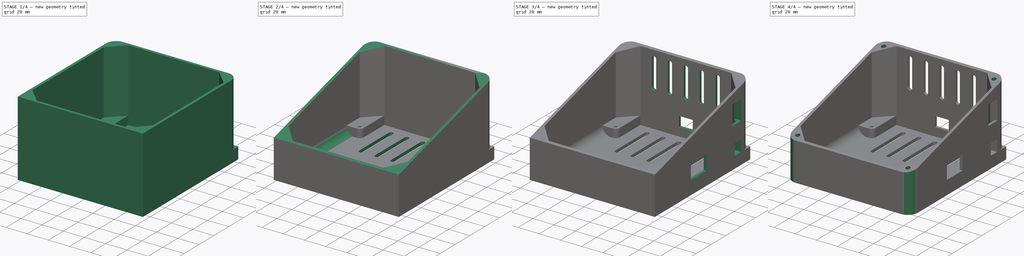
[diagram: build sequence overview — one tinted view per stage of 4, left to right]
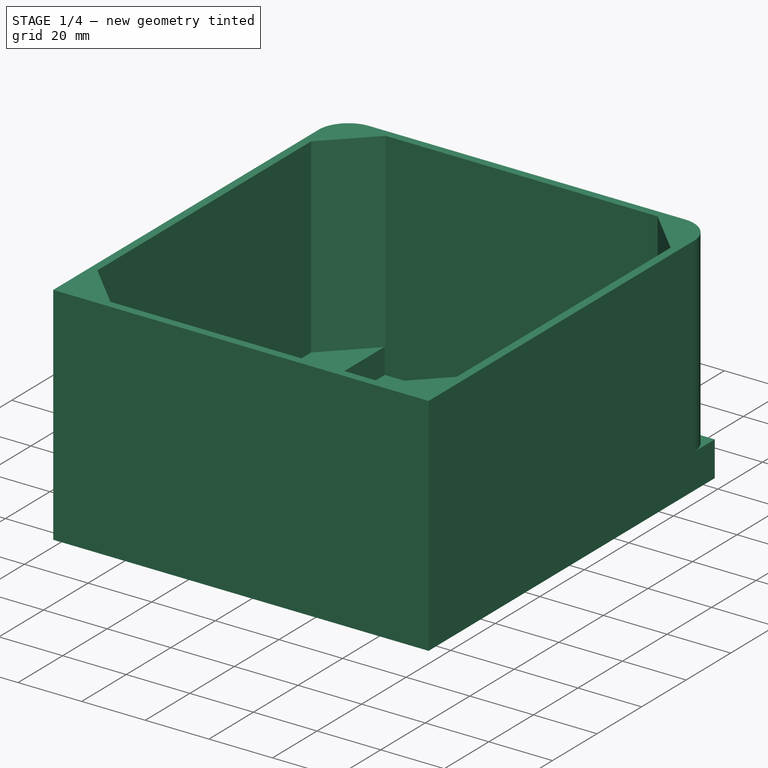
[diagram: stage 1 of 4 — iso view after this stage's code; geometry added in this stage tinted green]
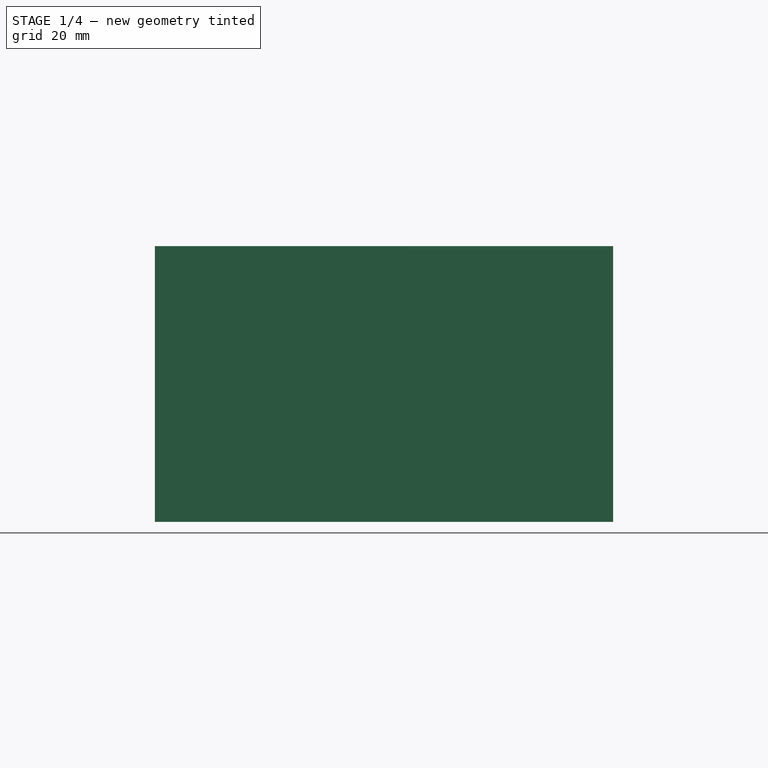
[diagram: stage 1 of 4 — front view after this stage's code; geometry added in this stage tinted green]
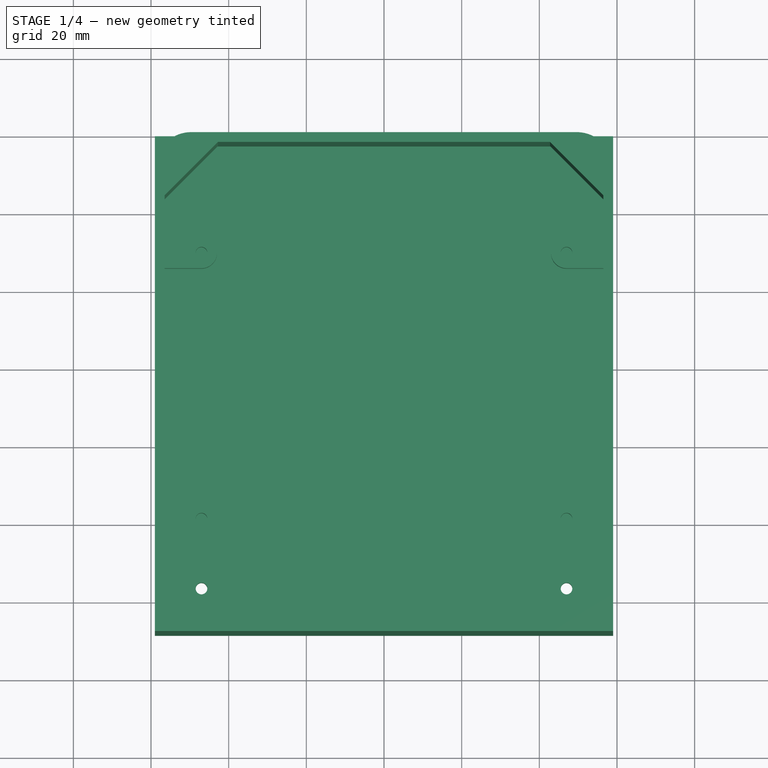
[diagram: stage 1 of 4 — top view after this stage's code; geometry added in this stage tinted green]
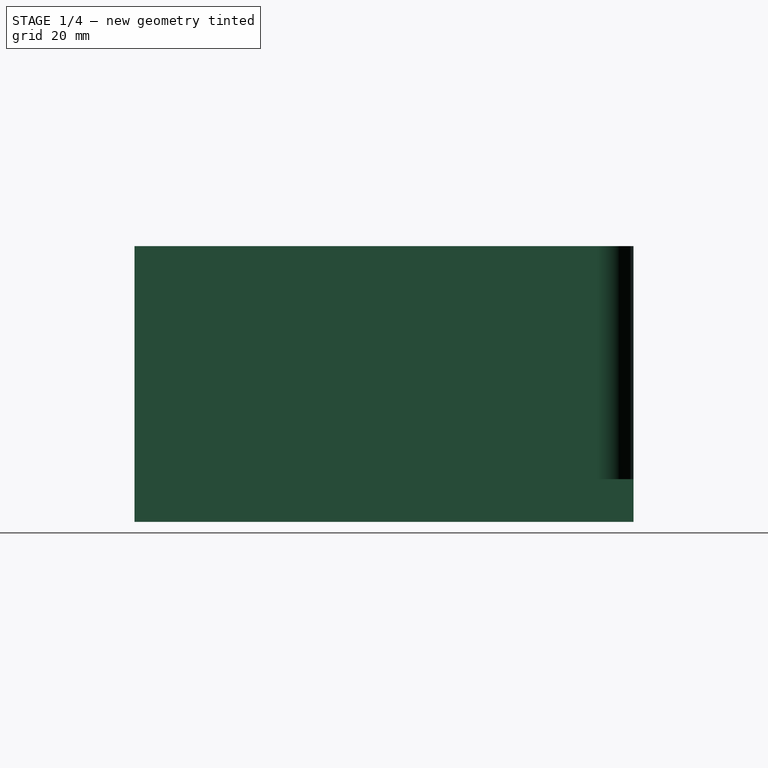
[diagram: stage 1 of 4 — right view after this stage's code; geometry added in this stage tinted green]
FCSTD DOCUMENT  (FreeCAD 0.20RUnknown)
Label: chassis
License: All rights reserved
LicenseURL: http://en.wikipedia.org/wiki/All_rights_reserved
objects: Sketcher::SketchObject×9, PartDesign::Pocket×6, PartDesign::Plane×5, PartDesign::Pad×3, PartDesign::Fillet×2, PartDesign::Body×1
note: 37 computed .brp shape members not serialized (recipe doc carries the construction recipe); baked Part::Feature solids carry a one-line shape summary decoded from their .brp

FEATURE [PartDesign::Plane] DatumPlane
  Length = 144.917
  MapMode = 5
  ResizeMode = 0
  Support = -> [XY_Plane]
  Width = 180.417
FEATURE [Sketcher::SketchObject] Sketch
  FullyConstrained = true
  MapMode = 5
  Support = -> [DatumPlane]
  sketch-geometry (26):
    g0: Circle CenterX=-47 CenterY=-30 CenterZ=0 NormalX=0 NormalY=0 NormalZ=1 AngleXU=0 Radius=1.5
    g1: Circle CenterX=47 CenterY=-30 CenterZ=0 NormalX=0 NormalY=0 NormalZ=1 AngleXU=0 Radius=1.5
    g2: Circle CenterX=47 CenterY=-98.5 CenterZ=0 NormalX=0 NormalY=0 NormalZ=1 AngleXU=0 Radius=1.5
    g3: Circle CenterX=-47 CenterY=-98.5 CenterZ=0 NormalX=0 NormalY=0 NormalZ=1 AngleXU=0 Radius=1.5
    g4: LineSegment StartX=59 StartY=0 StartZ=0 EndX=59 EndY=-128.5 EndZ=0
    g5: LineSegment StartX=59 StartY=-128.5 StartZ=0 EndX=-59 EndY=-128.5 EndZ=0
    g6: LineSegment StartX=-59 StartY=-128.5 StartZ=0 EndX=-59 EndY=0 EndZ=0
    g7: ArcOfCircle CenterX=-47 CenterY=-30 CenterZ=0 NormalX=0 NormalY=0 NormalZ=1 AngleXU=0 Radius=4 StartAngle=4.71239 EndAngle=6.28319
    g8: LineSegment StartX=-43 StartY=-30 StartZ=0 EndX=-43 EndY=-2.5 EndZ=0
    g9: ArcOfCircle CenterX=47 CenterY=-30 CenterZ=0 NormalX=0 NormalY=0 NormalZ=1 AngleXU=0 Radius=4 StartAngle=3.14159 EndAngle=4.71239
    g10: ArcOfCircle CenterX=47 CenterY=-98.5 CenterZ=0 NormalX=0 NormalY=0 NormalZ=1 AngleXU=0 Radius=4 StartAngle=1.5708 EndAngle=3.14159
    g11: ArcOfCircle CenterX=-47 CenterY=-98.5 CenterZ=0 NormalX=0 NormalY=0 NormalZ=1 AngleXU=0 Radius=4 StartAngle=8e-16 EndAngle=1.5708
    g12: LineSegment StartX=-47 StartY=-34 StartZ=0 EndX=-56.5 EndY=-34 EndZ=0
    g13: LineSegment StartX=-56.5 StartY=-34 StartZ=0 EndX=-56.5 EndY=-94.5 EndZ=0
    g14: LineSegment StartX=-56.5 StartY=-94.5 StartZ=0 EndX=-47 EndY=-94.5 EndZ=0
    g15: LineSegment StartX=-43 StartY=-98.5 StartZ=0 EndX=-43 EndY=-126 EndZ=0
    g16: LineSegment StartX=43 StartY=-98.5 StartZ=0 EndX=43 EndY=-126 EndZ=0
    g17: LineSegment StartX=43 StartY=-126 StartZ=0 EndX=-43 EndY=-126 EndZ=0
    g18: LineSegment StartX=47 StartY=-94.5 StartZ=0 EndX=56.5 EndY=-94.5 EndZ=0
    g19: LineSegment StartX=56.5 StartY=-94.5 StartZ=0 EndX=56.5 EndY=-34 EndZ=0
    g20: LineSegment StartX=56.5 StartY=-34 StartZ=0 EndX=47 EndY=-34 EndZ=0
    g21: LineSegment StartX=43 StartY=-30 StartZ=0 EndX=43 EndY=-2.5 EndZ=0
    g22: LineSegment StartX=-59 StartY=0 StartZ=0 EndX=59 EndY=0 EndZ=0
    g23: LineSegment StartX=43 StartY=-2.5 StartZ=0 EndX=-43 EndY=-2.5 EndZ=0
    g24: Circle CenterX=-47 CenterY=-116.5 CenterZ=0 NormalX=0 NormalY=0 NormalZ=1 AngleXU=0 Radius=1.5
    g25: Circle CenterX=47 CenterY=-116.5 CenterZ=0 NormalX=0 NormalY=0 NormalZ=1 AngleXU=0 Radius=1.5
  constraints (76):
    c: Radius(g0) = 1.5
    c: Equal(g0,g1)
    c: Equal(g1,g2)
    c: Equal(g2,g3)
    c: DistanceX(g0,g-1) = 47
    c: DistanceX(g0,g1) = 94
    c: Vertical(g0,g3)
    c: Vertical(g1,g2)
    c: DistanceY(g3,g0) = 68.5
    c: DistanceY(g2,g1) = 68.5
    c: DistanceY(g3,g-1) = 98.5
    c: Horizontal(g3,g2)
    c: Coincident(g4,g5)
    c: Coincident(g5,g6)
    c: Horizontal(g5)
    c: Vertical(g4)
    c: Vertical(g6)
    c: DistanceY(g5,g3) = 30
    c: Symmetric(g6,g4,g-1)
    c: DistanceX(g6,g-1) = 59
    c: Coincident(g7,g0)
    c: Coincident(g8,g7)
    c: Vertical(g8)
    c: Coincident(g9,g1)
    c: Coincident(g10,g2)
    c: Coincident(g11,g3)
    c: Coincident(g12,g7)
    c: Horizontal(g12)
    c: Coincident(g13,g12)
    c: Vertical(g13)
    c: Coincident(g14,g13)
    c: Coincident(g14,g11)
    c: Horizontal(g14)
    c: Coincident(g15,g11)
    c: Vertical(g15)
    c: Coincident(g16,g10)
    c: Vertical(g16)
    c: Coincident(g17,g16)
    c: Coincident(g17,g15)
    c: Horizontal(g17)
    c: Coincident(g18,g10)
    c: Horizontal(g18)
    c: Coincident(g19,g18)
    c: Vertical(g19)
    c: Coincident(g20,g19)
    c: Coincident(g20,g9)
    c: Horizontal(g20)
    c: Coincident(g21,g9)
    c: Vertical(g21)
    c: DistanceY(g8,g-1) = 2.5
    c: DistanceY(g5,g15) = 2.5
    c: DistanceX(g6,g12) = 2.5
    c: DistanceX(g19,g4) = 2.5
    c: Vertical(g1,g9)
    c: Vertical(g0,g7)
    c: Vertical(g3,g11)
    c: Vertical(g2,g10)
    c: Horizontal(g2,g10)
    c: Horizontal(g3,g11)
    c: Horizontal(g0,g7)
    c: Horizontal(g1,g9)
    c: Radius(g7) = 4
    c: Equal(g7,g9)
    c: Equal(g9,g10)
    c: Equal(g10,g11)
    c: Coincident(g22,g6)
    c: Coincident(g22,g4)
    c: Horizontal(g22)
    c: Coincident(g23,g21)
    c: Coincident(g23,g8)
    c: Horizontal(g23)
    c: Radius(g24) = 1.5
    c: Radius(g25) = 1.5
    c: DistanceX(g5,g24) = 12
    c: Symmetric(g24,g25,g-2)
    c: DistanceY(g5,g24) = 12
FEATURE [PartDesign::Pad] Pad
  Direction = (0,0,1)
  Length = 8
  Length2 = 10
  Profile = -> Sketch
  ReferenceAxis = -> Sketch [N_Axis]
  Type = 0
FEATURE [Sketcher::SketchObject] Sketch001
  FullyConstrained = true
  MapMode = 5
  Support = -> [DatumPlane]
  sketch-geometry (6):
    g0: LineSegment StartX=-59 StartY=-128.5 StartZ=0 EndX=59 EndY=-128.5 EndZ=0
    g1: LineSegment StartX=59 StartY=-128.5 StartZ=0 EndX=59 EndY=0 EndZ=0
    g2: LineSegment StartX=59 StartY=0 StartZ=0 EndX=-59 EndY=0 EndZ=0
    g3: LineSegment StartX=-59 StartY=0 StartZ=0 EndX=-59 EndY=-128.5 EndZ=0
    g4: Circle CenterX=-47 CenterY=-116.5 CenterZ=0 NormalX=0 NormalY=0 NormalZ=1 AngleXU=0 Radius=2
    g5: Circle CenterX=47 CenterY=-116.5 CenterZ=0 NormalX=0 NormalY=0 NormalZ=1 AngleXU=0 Radius=2
  constraints (16):
    c: Coincident(g0,g1)
    c: Coincident(g1,g2)
    c: Coincident(g2,g3)
    c: Coincident(g3,g0)
    c: Horizontal(g0)
    c: Horizontal(g2)
    c: Vertical(g1)
    c: Vertical(g3)
    c: Symmetric(g2,g1,g-1)
    c: DistanceX(g2,g-1) = 59
    c: DistanceY(g3,g3) = 128.5
    c: Radius(g4) = 2
    c: Equal(g4,g5)
    c: DistanceX(g0,g4) = 12
    c: DistanceY(g0,g4) = 12
    c: Symmetric(g4,g5,g-2)
FEATURE [PartDesign::Pad] Pad001
  BaseFeature = -> Pad
  Direction = (0,0,1)
  Length = 3
  Length2 = 10
  Profile = -> Sketch001
  ReferenceAxis = -> Sketch001 [N_Axis]
  Refine = true
  Reversed = true
  Type = 0
FEATURE [PartDesign::Plane] DatumPlane001
  AttachmentOffset = pos=(0,0,8) rot=(0,0,1;0rad)
  Length = 144.917
  MapMode = 5
  Placement = pos=(0,0,8) rot=(0,0,1;0rad)
  ResizeMode = 0
  Support = -> [XY_Plane]
  Width = 180.417
FEATURE [Sketcher::SketchObject] Sketch002
  FullyConstrained = true
  MapMode = 5
  Placement = pos=(0,0,8) rot=(0,0,1;0rad)
  Support = -> [DatumPlane001]
  sketch-geometry (14):
    g0: LineSegment StartX=-42.75 StartY=-2.5 StartZ=0 EndX=42.75 EndY=-2.5 EndZ=0
    g1: LineSegment StartX=42.75 StartY=-2.5 StartZ=0 EndX=56.5 EndY=-16.25 EndZ=0
    g2: LineSegment StartX=56.5 StartY=-16.25 StartZ=0 EndX=56.5 EndY=-112.25 EndZ=0
    g3: LineSegment StartX=56.5 StartY=-112.25 StartZ=0 EndX=42.75 EndY=-126 EndZ=0
    g4: LineSegment StartX=42.75 StartY=-126 StartZ=0 EndX=-42.75 EndY=-126 EndZ=0
    g5: LineSegment StartX=-42.75 StartY=-126 StartZ=0 EndX=-56.5 EndY=-112.25 EndZ=0
    g6: LineSegment StartX=-56.5 StartY=-112.25 StartZ=0 EndX=-56.5 EndY=-16.25 EndZ=0
    g7: LineSegment StartX=-56.5 StartY=-16.25 StartZ=0 EndX=-42.75 EndY=-2.5 EndZ=0
    g8: ArcOfCircle CenterX=49.625 CenterY=-9.375 CenterZ=0 NormalX=0 NormalY=0 NormalZ=1 AngleXU=0 Radius=9.375 StartAngle=6.28318 EndAngle=7.85398
    g9: ArcOfCircle CenterX=-49.625 CenterY=-9.375 CenterZ=0 NormalX=0 NormalY=0 NormalZ=1 AngleXU=0 Radius=9.375 StartAngle=1.5708 EndAngle=3.1416
    g10: LineSegment StartX=-49.625 StartY=1.8e-15 StartZ=0 EndX=49.625 EndY=0 EndZ=0
    g11: LineSegment StartX=59 StartY=-9.37502 StartZ=0 EndX=59 EndY=-128.5 EndZ=0
    g12: LineSegment StartX=-59 StartY=-128.5 StartZ=0 EndX=-59 EndY=-9.37502 EndZ=0
    g13: LineSegment StartX=-59 StartY=-128.5 StartZ=0 EndX=59 EndY=-128.5 EndZ=0
  constraints (36):
    c: Coincident(g1,g0)
    c: Coincident(g2,g1)
    c: Vertical(g2)
    c: Coincident(g3,g2)
    c: Coincident(g4,g3)
    c: Coincident(g5,g4)
    c: Coincident(g6,g5)
    c: Vertical(g6)
    c: Coincident(g7,g6)
    c: Coincident(g7,g0)
    c: Symmetric(g0,g0,g-2)
    c: Symmetric(g4,g3,g-2)
    c: Symmetric(g1,g6,g-2)
    c: Vertical(g0,g4)
    c: DistanceX(g0,g-1) = 42.75
    c: Angle(g7,g1) = 1.5708
    c: Angle(g2,g3) = 2.35619
    c: Angle(g5,g6) = 2.35619
    c: Symmetric(g1,g0,g8)
    c: Symmetric(g0,g6,g9)
    c: Coincident(g10,g9)
    c: Coincident(g10,g8)
    c: Coincident(g11,g8)
    c: Coincident(g12,g9)
    c: Vertical(g9,g9)
    c: Symmetric(g9,g8,g-1)
    c: Symmetric(g9,g8,g-2)
    c: DistanceX(g9,g8) = 118
    c: DistanceX(g9,g6) = 2.5
    c: DistanceY(g0,g9) = 2.5
    c: DistanceX(g12,g5) = 2.5
    c: Coincident(g13,g12)
    c: Coincident(g13,g11)
    c: DistanceY(g11,g-1) = 128.5
    c: DistanceY(g11,g3) = 2.5
    c: Symmetric(g12,g11,g-2)
FEATURE [PartDesign::Pad] Pad002
  BaseFeature = -> Pad001
  Direction = (0,0,1)
  Length = 60
  Length2 = 10
  Profile = -> Sketch002
  ReferenceAxis = -> Sketch002 [N_Axis]
  Refine = true
  Type = 0
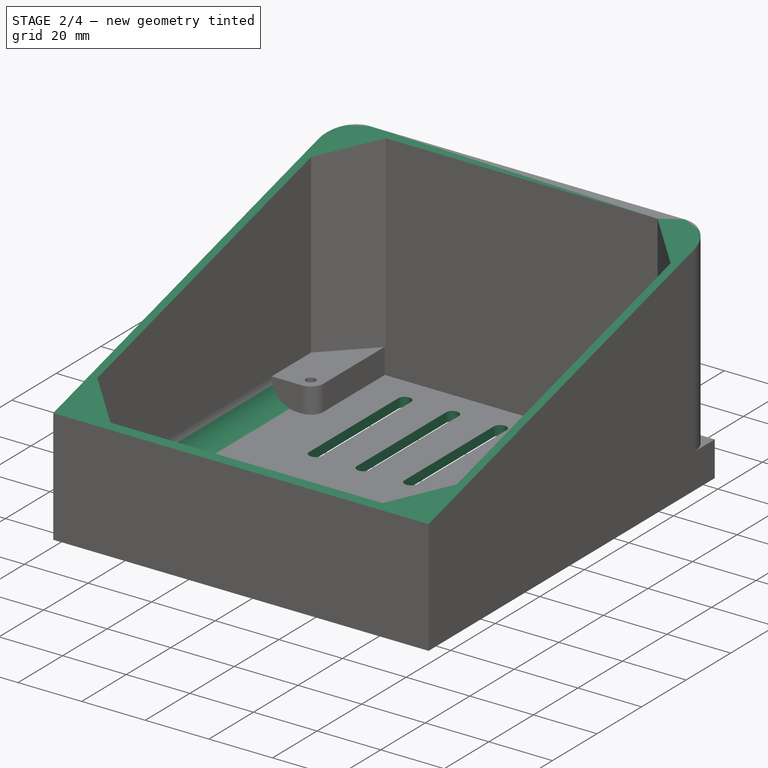
[diagram: stage 2 of 4 — iso view after this stage's code; geometry added in this stage tinted green]
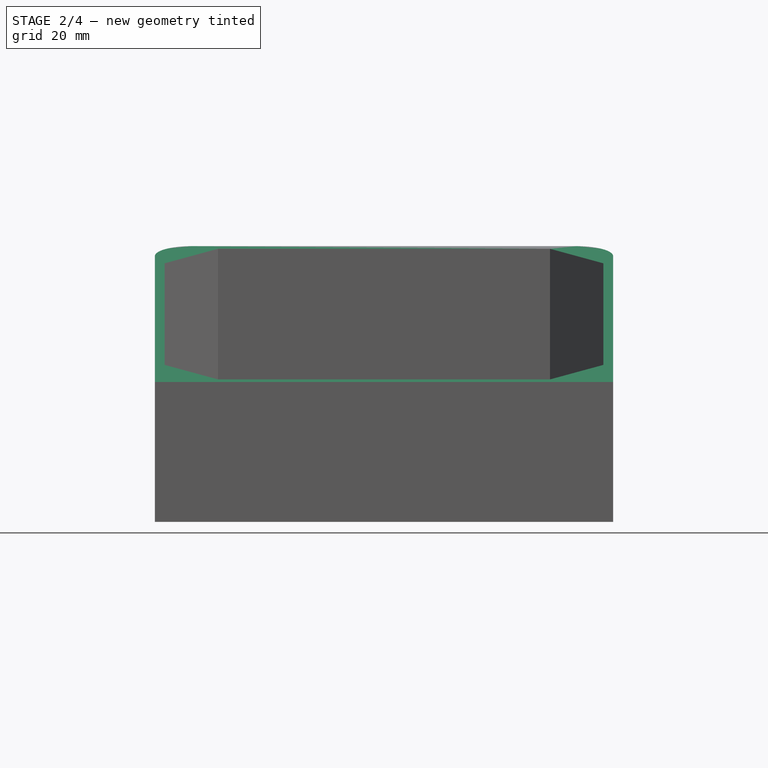
[diagram: stage 2 of 4 — front view after this stage's code; geometry added in this stage tinted green]
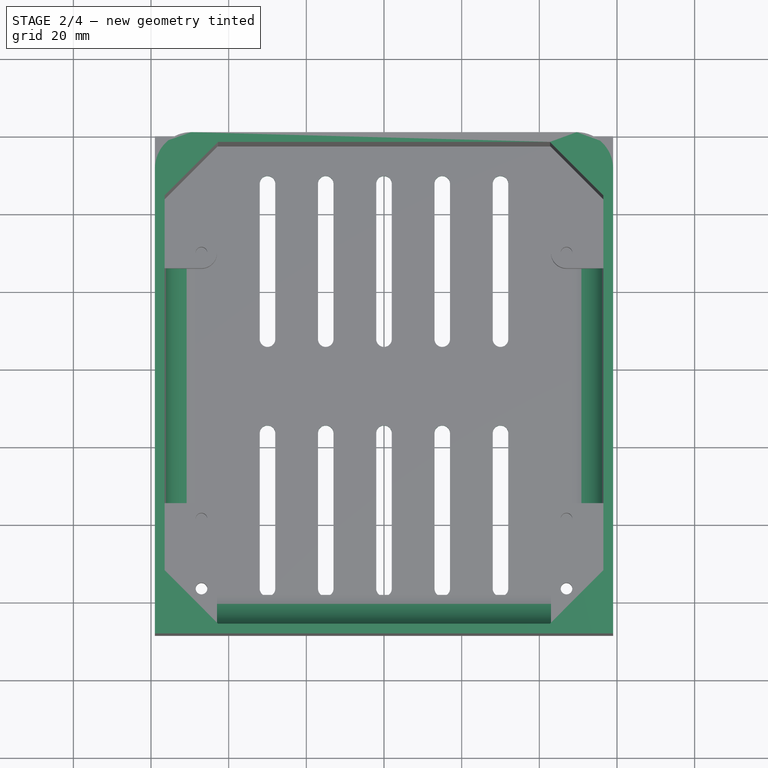
[diagram: stage 2 of 4 — top view after this stage's code; geometry added in this stage tinted green]
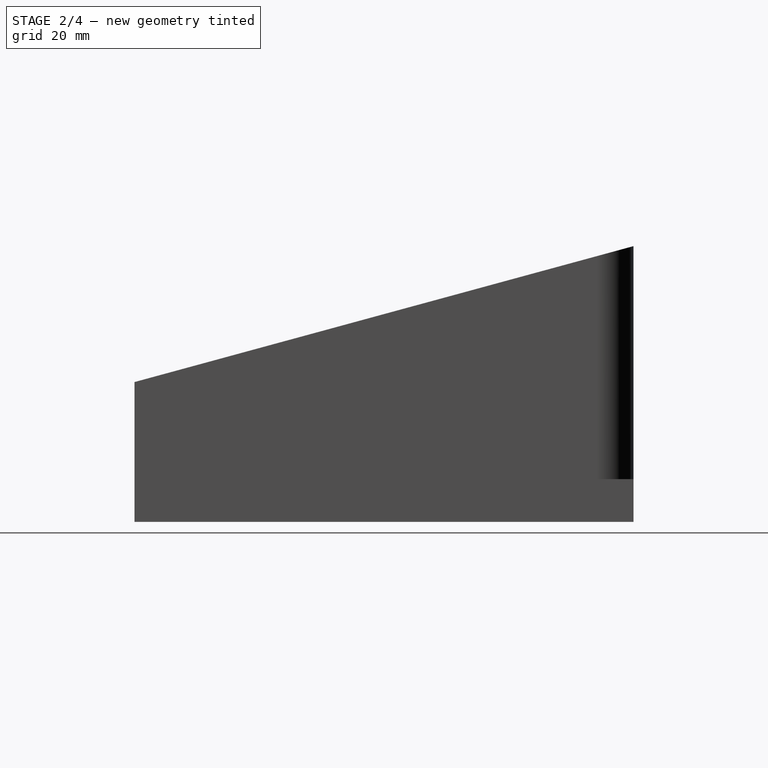
[diagram: stage 2 of 4 — right view after this stage's code; geometry added in this stage tinted green]
FEATURE [PartDesign::Plane] DatumPlane002
  AttachmentOffset = pos=(0,0,59) rot=(0,0,1;0rad)
  Length = 177.396
  MapMode = 5
  Placement = pos=(59,-1.31e-14,1.31e-14) rot=(0.57735,0.57735,0.57735;2.0944rad)
  ResizeMode = 0
  Support = -> [YZ_Plane]
  Width = 116.896
FEATURE [Sketcher::SketchObject] Sketch003
  FullyConstrained = true
  MapMode = 5
  Placement = pos=(59,-1.31e-14,1.31e-14) rot=(0.57735,0.57735,0.57735;2.0944rad)
  Support = -> [DatumPlane002]
  sketch-geometry (3):
    g0: LineSegment StartX=-128.5 StartY=33 StartZ=0 EndX=0 EndY=68 EndZ=0
    g1: LineSegment StartX=-128.5 StartY=33 StartZ=0 EndX=-128.5 EndY=68 EndZ=0
    g2: LineSegment StartX=-128.5 StartY=68 StartZ=0 EndX=0 EndY=68 EndZ=0
  constraints (9):
    c: PointOnObject(g0,g-2)
    c: Coincident(g1,g0)
    c: Vertical(g1)
    c: Coincident(g2,g1)
    c: Coincident(g2,g0)
    c: Horizontal(g2)
    c: DistanceY(g-1,g0) = 33
    c: DistanceY(g-1,g0) = 68
    c: DistanceX(g2,g2) = 128.5
FEATURE [PartDesign::Fillet] Fillet
  Base = -> Pad002 [Edge114,Edge113,Edge115]
  BaseFeature = -> Pad002
  Radius = 8
  Refine = true
  SupportTransform = false
  UseAllEdges = false
FEATURE [PartDesign::Pocket] Pocket
  BaseFeature = -> Fillet
  Direction = (-1,1e-16,-1e-16)
  Length = 118
  Length2 = 5
  Profile = -> Sketch003
  ReferenceAxis = -> Sketch003 [N_Axis]
  Type = 0
FEATURE [Sketcher::SketchObject] Sketch004
  FullyConstrained = true
  MapMode = 5
  Support = -> [DatumPlane]
  sketch-geometry (50):
    g0: ArcOfCircle CenterX=0 CenterY=-12.125 CenterZ=0 NormalX=0 NormalY=0 NormalZ=1 AngleXU=0 Radius=2 StartAngle=3.3915e-12 EndAngle=3.14159
    g1: ArcOfCircle CenterX=0 CenterY=-52.125 CenterZ=0 NormalX=0 NormalY=0 NormalZ=1 AngleXU=0 Radius=2 StartAngle=3.14159 EndAngle=6.28319
    g2: LineSegment StartX=-2 StartY=-12.125 StartZ=0 EndX=-2 EndY=-52.125 EndZ=0
    g3: LineSegment StartX=2 StartY=-52.125 StartZ=0 EndX=2 EndY=-32.125 EndZ=0
    g4: LineSegment StartX=2 StartY=-32.125 StartZ=0 EndX=2 EndY=-12.125 EndZ=0
    g5: ArcOfCircle CenterX=15 CenterY=-12.125 CenterZ=0 NormalX=0 NormalY=0 NormalZ=1 AngleXU=0 Radius=2 StartAngle=3.4079e-12 EndAngle=3.14159
    g6: ArcOfCircle CenterX=15 CenterY=-52.125 CenterZ=0 NormalX=0 NormalY=0 NormalZ=1 AngleXU=0 Radius=2 StartAngle=3.14159 EndAngle=6.28319
    g7: LineSegment StartX=13 StartY=-12.125 StartZ=0 EndX=13 EndY=-52.125 EndZ=0
    g8: LineSegment StartX=17 StartY=-52.125 StartZ=0 EndX=17 EndY=-32.125 EndZ=0
    g9: LineSegment StartX=17 StartY=-32.125 StartZ=0 EndX=17 EndY=-12.125 EndZ=0
    g10: ArcOfCircle CenterX=30 CenterY=-12.125 CenterZ=0 NormalX=0 NormalY=0 NormalZ=1 AngleXU=0 Radius=2 StartAngle=3.4085e-12 EndAngle=3.14159
    g11: ArcOfCircle CenterX=30 CenterY=-52.125 CenterZ=0 NormalX=0 NormalY=0 NormalZ=1 AngleXU=0 Radius=2 StartAngle=3.14159 EndAngle=6.28319
    g12: LineSegment StartX=28 StartY=-12.125 StartZ=0 EndX=28 EndY=-52.125 EndZ=0
    g13: LineSegment StartX=32 StartY=-52.125 StartZ=0 EndX=32 EndY=-32.125 EndZ=0
    g14: LineSegment StartX=32 StartY=-32.125 StartZ=0 EndX=32 EndY=-12.125 EndZ=0
    g15: ArcOfCircle CenterX=-30 CenterY=-12.125 CenterZ=0 NormalX=0 NormalY=0 NormalZ=1 AngleXU=0 Radius=2 StartAngle=3.385e-12 EndAngle=3.14159
    g16: ArcOfCircle CenterX=-30 CenterY=-52.125 CenterZ=0 NormalX=0 NormalY=0 NormalZ=1 AngleXU=0 Radius=2 StartAngle=3.14159 EndAngle=6.28319
    g17: LineSegment StartX=-32 StartY=-12.125 StartZ=0 EndX=-32 EndY=-52.125 EndZ=0
    g18: LineSegment StartX=-28 StartY=-52.125 StartZ=0 EndX=-28 EndY=-32.125 EndZ=0
    g19: LineSegment StartX=-28 StartY=-32.125 StartZ=0 EndX=-28 EndY=-12.125 EndZ=0
    g20: ArcOfCircle CenterX=-15 CenterY=-12.125 CenterZ=0 NormalX=0 NormalY=0 NormalZ=1 AngleXU=0 Radius=2 StartAngle=3.4081e-12 EndAngle=3.14159
    g21: ArcOfCircle CenterX=-15 CenterY=-52.125 CenterZ=0 NormalX=0 NormalY=0 NormalZ=1 AngleXU=0 Radius=2 StartAngle=3.14159 EndAngle=6.28319
    g22: LineSegment StartX=-17 StartY=-12.125 StartZ=0 EndX=-17 EndY=-52.125 EndZ=0
    g23: LineSegment StartX=-13 StartY=-52.125 StartZ=0 EndX=-13 EndY=-32.125 EndZ=0
    g24: LineSegment StartX=-13 StartY=-32.125 StartZ=0 EndX=-13 EndY=-12.125 EndZ=0
    g25: ArcOfCircle CenterX=0 CenterY=-76.375 CenterZ=0 NormalX=0 NormalY=0 NormalZ=1 AngleXU=0 Radius=2 StartAngle=-9.2797e-12 EndAngle=3.14159
    g26: ArcOfCircle CenterX=0 CenterY=-116.375 CenterZ=0 NormalX=0 NormalY=0 NormalZ=1 AngleXU=0 Radius=2 StartAngle=3.14159 EndAngle=6.28319
    g27: LineSegment StartX=-2 StartY=-76.375 StartZ=0 EndX=-2 EndY=-116.375 EndZ=0
    g28: LineSegment StartX=2 StartY=-116.375 StartZ=0 EndX=2 EndY=-96.375 EndZ=0
    g29: LineSegment StartX=2 StartY=-96.375 StartZ=0 EndX=2 EndY=-76.375 EndZ=0
    g30: ArcOfCircle CenterX=15 CenterY=-76.375 CenterZ=0 NormalX=0 NormalY=0 NormalZ=1 AngleXU=0 Radius=2 StartAngle=-9.3054e-12 EndAngle=3.14159
    g31: ArcOfCircle CenterX=15 CenterY=-116.375 CenterZ=0 NormalX=0 NormalY=0 NormalZ=1 AngleXU=0 Radius=2 StartAngle=3.14159 EndAngle=6.28319
    g32: LineSegment StartX=13 StartY=-76.375 StartZ=0 EndX=13 EndY=-116.375 EndZ=0
    g33: LineSegment StartX=17 StartY=-116.375 StartZ=0 EndX=17 EndY=-96.375 EndZ=0
    g34: LineSegment StartX=17 StartY=-96.375 StartZ=0 EndX=17 EndY=-76.375 EndZ=0
    g35: ArcOfCircle CenterX=30 CenterY=-76.375 CenterZ=0 NormalX=0 NormalY=0 NormalZ=1 AngleXU=0 Radius=2 StartAngle=-9.3037e-12 EndAngle=3.14159
    g36: ArcOfCircle CenterX=30 CenterY=-116.375 CenterZ=0 NormalX=0 NormalY=0 NormalZ=1 AngleXU=0 Radius=2 StartAngle=3.14159 EndAngle=6.28319
    g37: LineSegment StartX=28 StartY=-76.375 StartZ=0 EndX=28 EndY=-116.375 EndZ=0
    g38: LineSegment StartX=32 StartY=-116.375 StartZ=0 EndX=32 EndY=-96.375 EndZ=0
    g39: LineSegment StartX=32 StartY=-96.375 StartZ=0 EndX=32 EndY=-76.375 EndZ=0
    g40: ArcOfCircle CenterX=-30 CenterY=-76.375 CenterZ=0 NormalX=0 NormalY=0 NormalZ=1 AngleXU=0 Radius=2 StartAngle=-9.2788e-12 EndAngle=3.14159
    g41: ArcOfCircle CenterX=-30 CenterY=-116.375 CenterZ=0 NormalX=0 NormalY=0 NormalZ=1 AngleXU=0 Radius=2 StartAngle=3.14159 EndAngle=6.28319
    g42: LineSegment StartX=-32 StartY=-76.375 StartZ=0 EndX=-32 EndY=-116.375 EndZ=0
    g43: LineSegment StartX=-28 StartY=-116.375 StartZ=0 EndX=-28 EndY=-96.375 EndZ=0
    g44: LineSegment StartX=-28 StartY=-96.375 StartZ=0 EndX=-28 EndY=-76.375 EndZ=0
    g45: ArcOfCircle CenterX=-15 CenterY=-76.375 CenterZ=0 NormalX=0 NormalY=0 NormalZ=1 AngleXU=0 Radius=2 StartAngle=-9.3037e-12 EndAngle=3.14159
    g46: ArcOfCircle CenterX=-15 CenterY=-116.375 CenterZ=0 NormalX=0 NormalY=0 NormalZ=1 AngleXU=0 Radius=2 StartAngle=3.14159 EndAngle=6.28319
    g47: LineSegment StartX=-17 StartY=-76.375 StartZ=0 EndX=-17 EndY=-116.375 EndZ=0
    g48: LineSegment StartX=-13 StartY=-116.375 StartZ=0 EndX=-13 EndY=-96.375 EndZ=0
    g49: LineSegment StartX=-13 StartY=-96.375 StartZ=0 EndX=-13 EndY=-76.375 EndZ=0
  constraints (120):
    c: Tangent(g0,g2) = -1.5708
    c: Tangent(g2,g1) = -1.5708
    c: Tangent(g1,g3) = -1.5708
    c: Tangent(g4,g0) = -1.5708
    c: Equal(g0,g1)
    c: PointOnObject(g0,g-2)
    c: PointOnObject(g1,g-2)
    c: Radius(g0) = 2
    c: DistanceY(g1,g0) = 40
    c: Coincident(g3,g4)
    c: Symmetric(g0,g1,g3)
    c: DistanceY(g3,g-1) = 32.125
    c: Tangent(g5,g7) = -1.5708
    c: Tangent(g7,g6) = -1.5708
    c: Tangent(g6,g8) = -1.5708
    c: Tangent(g9,g5) = -1.5708
    c: Equal(g5,g6)
    c: Equal(g0,g5) = 2
    c: DistanceY(g6,g5) = 40
    c: Coincident(g8,g9)
    c: Symmetric(g5,g6,g8)
    c: Vertical(g7)
    c: DistanceX(g0,g5) = 15
    c: Horizontal(g3,g8)
    c: Tangent(g10,g12) = -1.5708
    c: Tangent(g12,g11) = -1.5708
    c: Tangent(g11,g13) = -1.5708
    c: Tangent(g14,g10) = -1.5708
    c: Equal(g10,g11)
    c: DistanceY(g11,g10) = 40
    c: Coincident(g13,g14)
    c: Symmetric(g10,g11,g13)
    c: Vertical(g12)
    c: Horizontal(g8,g13)
    c: Radius(g10) = 2
    c: DistanceX(g5,g10) = 15
    c: Tangent(g15,g17) = -1.5708
    c: Tangent(g17,g16) = -1.5708
    c: Tangent(g16,g18) = -1.5708
    c: Tangent(g19,g15) = -1.5708
    c: Equal(g15,g16)
    c: DistanceY(g16,g15) = 40
    c: Coincident(g18,g19)
    c: Symmetric(g15,g16,g18)
    c: Vertical(g17)
    c: Tangent(g20,g22) = -1.5708
    c: Tangent(g22,g21) = -1.5708
    c: Tangent(g21,g23) = -1.5708
    c: Tangent(g24,g20) = -1.5708
    c: Equal(g20,g21)
    c: DistanceY(g21,g20) = 40
    c: Coincident(g23,g24)
    c: Symmetric(g20,g21,g23)
    c: Vertical(g22)
    c: Horizontal(g18,g23)
    c: Equal(g10,g20) = 2
    c: DistanceX(g15,g20) = 15
    c: Horizontal(g23,g3)
    c: DistanceX(g20,g0) = 15
    c: Radius(g15) = 2
    c: Tangent(g25,g27) = -1.5708
    c: Tangent(g27,g26) = -1.5708
    c: Tangent(g26,g28) = -1.5708
    c: Tangent(g29,g25) = -1.5708
    c: Equal(g25,g26)
    c: Equal(g0,g25) = 2
    c: DistanceY(g26,g25) = 40
    c: Coincident(g28,g29)
    c: Symmetric(g25,g26,g28)
    c: Tangent(g30,g32) = -1.5708
    c: Tangent(g32,g31) = -1.5708
    c: Tangent(g31,g33) = -1.5708
    c: Tangent(g34,g30) = -1.5708
    c: Equal(g30,g31)
    c: Equal(g25,g30) = 2
    c: DistanceY(g31,g30) = 40
    c: Coincident(g33,g34)
    c: Symmetric(g30,g31,g33)
    c: Vertical(g32)
    c: DistanceX(g25,g30) = 15
    c: Horizontal(g28,g33)
    c: Tangent(g35,g37) = -1.5708
    c: Tangent(g37,g36) = -1.5708
    c: Tangent(g36,g38) = -1.5708
    c: Tangent(g39,g35) = -1.5708
    c: Equal(g35,g36)
    c: DistanceY(g36,g35) = 40
    c: Coincident(g38,g39)
    c: Symmetric(g35,g36,g38)
    c: Vertical(g37)
    c: Horizontal(g33,g38)
    c: Equal(g10,g35) = 2
    c: DistanceX(g30,g35) = 15
    c: Tangent(g40,g42) = -1.5708
    c: Tangent(g42,g41) = -1.5708
    c: Tangent(g41,g43) = -1.5708
    c: Tangent(g44,g40) = -1.5708
    c: Equal(g40,g41)
    c: DistanceY(g41,g40) = 40
    c: Coincident(g43,g44)
    c: Symmetric(g40,g41,g43)
    c: Vertical(g42)
    c: Tangent(g45,g47) = -1.5708
    c: Tangent(g47,g46) = -1.5708
    c: Tangent(g46,g48) = -1.5708
    c: Tangent(g49,g45) = -1.5708
    c: Equal(g45,g46)
    c: DistanceY(g46,g45) = 40
    c: Coincident(g48,g49)
    c: Symmetric(g45,g46,g48)
    c: Vertical(g47)
    c: Horizontal(g43,g48)
    c: Equal(g35,g45) = 2
    c: DistanceX(g40,g45) = 15
    c: Horizontal(g48,g28)
    c: DistanceX(g45,g25) = 15
    c: Equal(g15,g40) = 2
    c: PointOnObject(g25,g-2)
    c: PointOnObject(g26,g-2)
    c: DistanceY(g28,g3) = 64.25
FEATURE [PartDesign::Pocket] Pocket001
  BaseFeature = -> Pocket
  Direction = (0,0,-1)
  Length = 5
  Length2 = 5
  Profile = -> Sketch004
  ReferenceAxis = -> Sketch004 [N_Axis]
  Type = 0
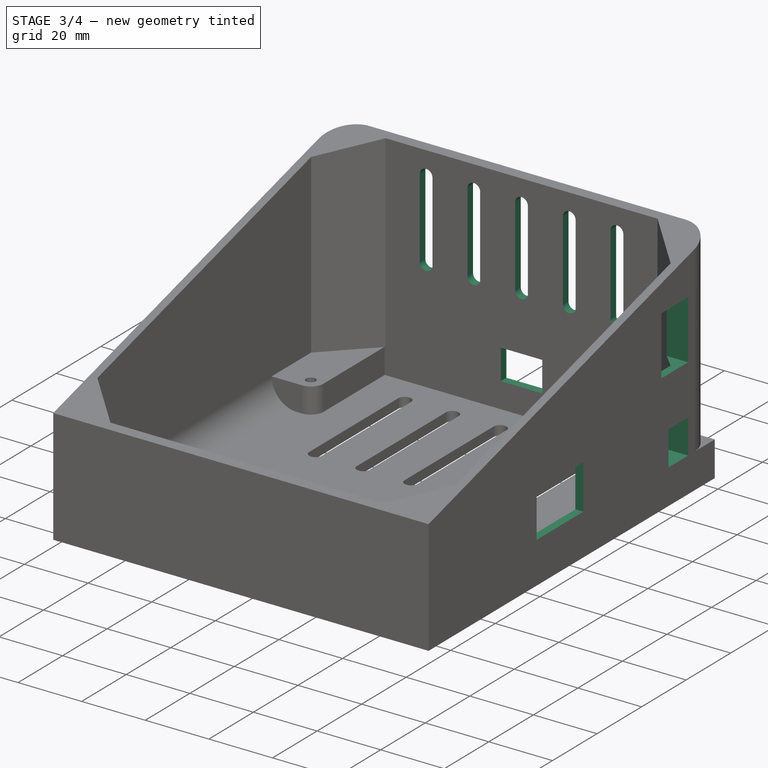
[diagram: stage 3 of 4 — iso view after this stage's code; geometry added in this stage tinted green]
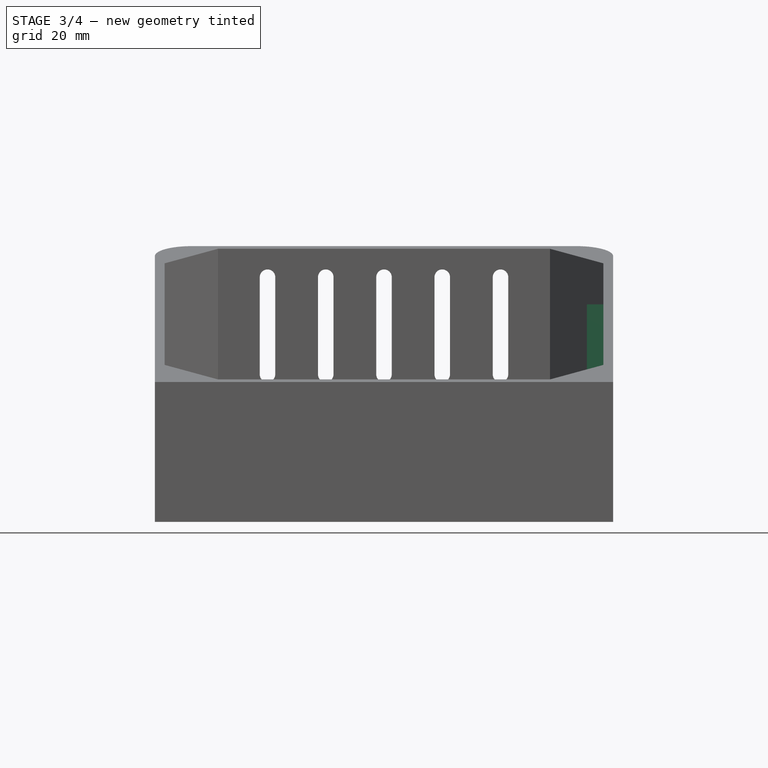
[diagram: stage 3 of 4 — front view after this stage's code; geometry added in this stage tinted green]
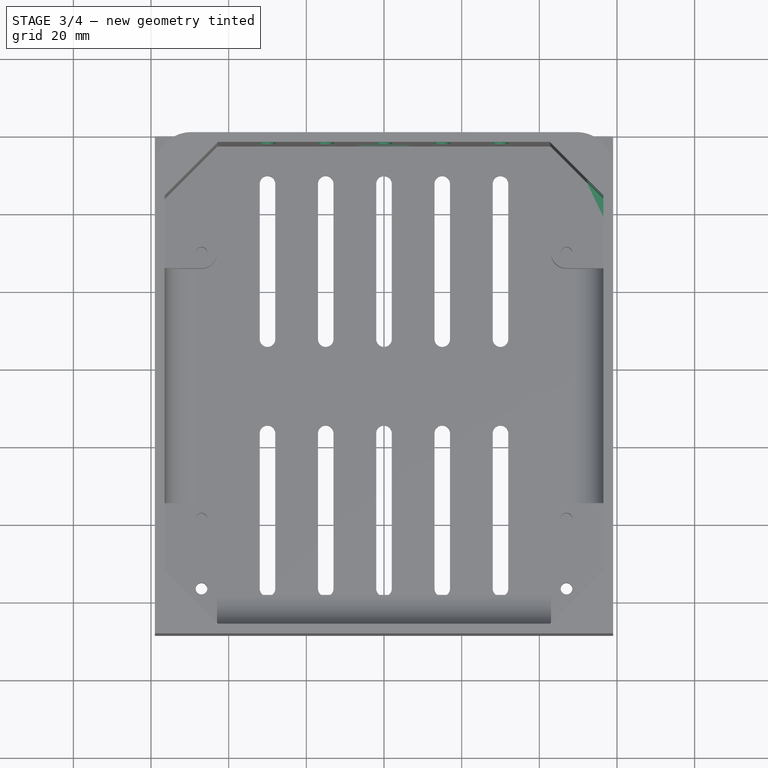
[diagram: stage 3 of 4 — top view after this stage's code; geometry added in this stage tinted green]
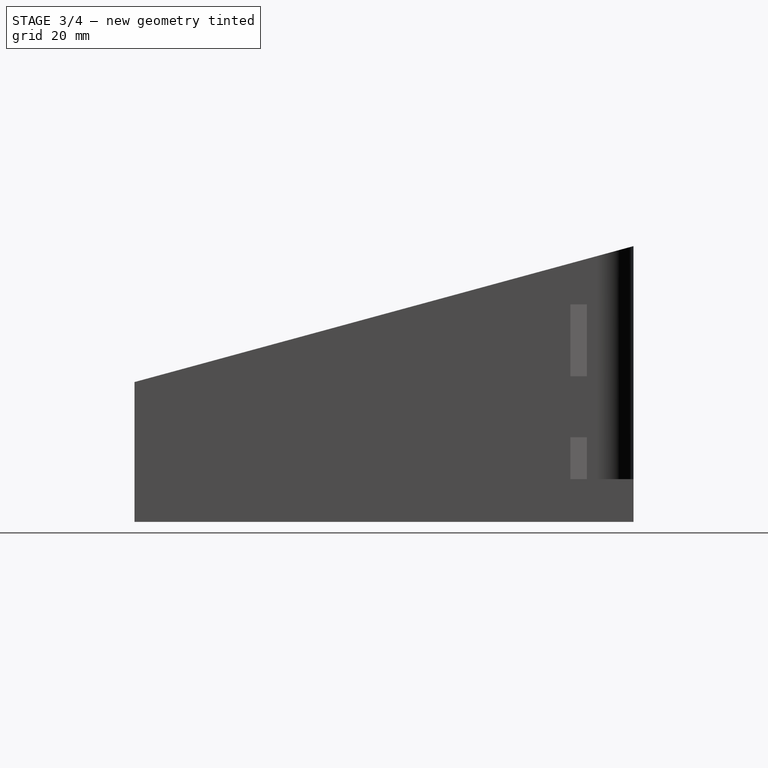
[diagram: stage 3 of 4 — right view after this stage's code; geometry added in this stage tinted green]
FEATURE [Sketcher::SketchObject] Sketch005
  FullyConstrained = true
  MapMode = 5
  Placement = pos=(59,-1.31e-14,1.31e-14) rot=(0.57735,0.57735,0.57735;2.0944rad)
  Support = -> [DatumPlane002]
  sketch-geometry (12):
    g0: LineSegment StartX=-80 StartY=24 StartZ=0 EndX=-59 EndY=24 EndZ=0
    g1: LineSegment StartX=-59 StartY=24 StartZ=0 EndX=-59 EndY=10 EndZ=0
    g2: LineSegment StartX=-59 StartY=10 StartZ=0 EndX=-80 EndY=10 EndZ=0
    g3: LineSegment StartX=-80 StartY=10 StartZ=0 EndX=-80 EndY=24 EndZ=0
    g4: LineSegment StartX=-12 StartY=53 StartZ=0 EndX=-24 EndY=53 EndZ=0
    g5: LineSegment StartX=-24 StartY=53 StartZ=0 EndX=-24 EndY=34.5 EndZ=0
    g6: LineSegment StartX=-24 StartY=34.5 StartZ=0 EndX=-12 EndY=34.5 EndZ=0
    g7: LineSegment StartX=-12 StartY=34.5 StartZ=0 EndX=-12 EndY=53 EndZ=0
    g8: LineSegment StartX=-12 StartY=18.8 StartZ=0 EndX=-20.8 EndY=18.8 EndZ=0
    g9: LineSegment StartX=-20.8 StartY=18.8 StartZ=0 EndX=-20.8 EndY=8 EndZ=0
    g10: LineSegment StartX=-20.8 StartY=8 StartZ=0 EndX=-12 EndY=8 EndZ=0
    g11: LineSegment StartX=-12 StartY=8 StartZ=0 EndX=-12 EndY=18.8 EndZ=0
  constraints (36):
    c: Coincident(g0,g1)
    c: Coincident(g1,g2)
    c: Coincident(g2,g3)
    c: Coincident(g3,g0)
    c: Horizontal(g0)
    c: Horizontal(g2)
    c: Vertical(g1)
    c: Vertical(g3)
    c: Coincident(g4,g5)
    c: Coincident(g5,g6)
    c: Coincident(g6,g7)
    c: Coincident(g7,g4)
    c: Horizontal(g4)
    c: Horizontal(g6)
    c: Vertical(g5)
    c: Vertical(g7)
    c: Coincident(g8,g9)
    c: Coincident(g9,g10)
    c: Coincident(g10,g11)
    c: Coincident(g11,g8)
    c: Horizontal(g8)
    c: Horizontal(g10)
    c: Vertical(g9)
    c: Vertical(g11)
    c: DistanceX(g1,g-1) = 59
    c: DistanceY(g1,g0) = 14
    c: DistanceX(g0,g0) = 21
    c: DistanceX(g6,g6) = 12
    c: DistanceY(g5,g5) = 18.5
    c: DistanceX(g6,g-1) = 12
    c: DistanceY(g-1,g6) = 34.5
    c: DistanceX(g10,g-1) = 12
    c: DistanceX(g10,g10) = 8.8
    c: DistanceY(g9,g9) = 10.8
    c: DistanceY(g-1,g10) = 8
    c: DistanceY(g-1,g0) = 24
FEATURE [PartDesign::Pocket] Pocket002
  BaseFeature = -> Pocket001
  Direction = (-1,1e-16,-1e-16)
  Length = 10
  Length2 = 5
  Profile = -> Sketch005
  ReferenceAxis = -> Sketch005 [N_Axis]
  Refine = true
  Type = 0
FEATURE [PartDesign::Plane] DatumPlane003
  AttachmentOffset = pos=(0,0,-1) rot=(0,0,1;0rad)
  Length = 138.951
  MapMode = 5
  Placement = pos=(0,1,2e-16) rot=(1,0,0;1.5708rad)
  ResizeMode = 0
  Support = -> [XZ_Plane]
  Width = 113.951
FEATURE [Sketcher::SketchObject] Sketch006
  FullyConstrained = true
  MapMode = 5
  Placement = pos=(0,1,2e-16) rot=(1,0,0;1.5708rad)
  Support = -> [DatumPlane003]
  sketch-geometry (28):
    g0: LineSegment StartX=-6.5 StartY=8 StartZ=0 EndX=6.5 EndY=8 EndZ=0
    g1: LineSegment StartX=6.5 StartY=8 StartZ=0 EndX=6.5 EndY=17.5 EndZ=0
    g2: LineSegment StartX=6.5 StartY=17.5 StartZ=0 EndX=-6.5 EndY=17.5 EndZ=0
    g3: LineSegment StartX=-6.5 StartY=17.5 StartZ=0 EndX=-6.5 EndY=8 EndZ=0
    g4: ArcOfCircle CenterX=-15 CenterY=35 CenterZ=0 NormalX=0 NormalY=0 NormalZ=1 AngleXU=0 Radius=2 StartAngle=3.14159 EndAngle=6.28319
    g5: ArcOfCircle CenterX=-15 CenterY=60 CenterZ=0 NormalX=0 NormalY=0 NormalZ=1 AngleXU=0 Radius=2 StartAngle=1.5e-15 EndAngle=3.14159
    g6: LineSegment StartX=-13 StartY=35 StartZ=0 EndX=-13 EndY=60 EndZ=0
    g7: LineSegment StartX=-17 StartY=60 StartZ=0 EndX=-17 EndY=35 EndZ=0
    g8: ArcOfCircle CenterX=-30 CenterY=35 CenterZ=0 NormalX=0 NormalY=0 NormalZ=1 AngleXU=0 Radius=2 StartAngle=3.14159 EndAngle=6.28319
    g9: ArcOfCircle CenterX=-30 CenterY=60 CenterZ=0 NormalX=0 NormalY=0 NormalZ=1 AngleXU=0 Radius=2 StartAngle=-9e-16 EndAngle=3.14159
    g10: LineSegment StartX=-28 StartY=35 StartZ=0 EndX=-28 EndY=60 EndZ=0
    g11: LineSegment StartX=-32 StartY=60 StartZ=0 EndX=-32 EndY=35 EndZ=0
    g12: ArcOfCircle CenterX=30 CenterY=35 CenterZ=0 NormalX=0 NormalY=0 NormalZ=1 AngleXU=0 Radius=2 StartAngle=3.14159 EndAngle=6.28319
    g13: ArcOfCircle CenterX=30 CenterY=60 CenterZ=0 NormalX=0 NormalY=0 NormalZ=1 AngleXU=0 Radius=2 StartAngle=-3.6e-15 EndAngle=3.14159
    g14: LineSegment StartX=32 StartY=35 StartZ=0 EndX=32 EndY=60 EndZ=0
    g15: LineSegment StartX=28 StartY=60 StartZ=0 EndX=28 EndY=35 EndZ=0
    g16: ArcOfCircle CenterX=15 CenterY=35 CenterZ=0 NormalX=0 NormalY=0 NormalZ=1 AngleXU=0 Radius=2 StartAngle=3.14159 EndAngle=6.28319
    g17: ArcOfCircle CenterX=15 CenterY=60 CenterZ=0 NormalX=0 NormalY=0 NormalZ=1 AngleXU=0 Radius=2 StartAngle=0 EndAngle=3.14159
    g18: LineSegment StartX=17 StartY=35 StartZ=0 EndX=17 EndY=60 EndZ=0
    g19: LineSegment StartX=13 StartY=60 StartZ=0 EndX=13 EndY=35 EndZ=0
    g20: ArcOfCircle CenterX=2e-16 CenterY=35 CenterZ=0 NormalX=0 NormalY=0 NormalZ=1 AngleXU=0 Radius=2 StartAngle=3.14159 EndAngle=6.28319
    g21: ArcOfCircle CenterX=0 CenterY=60 CenterZ=0 NormalX=0 NormalY=0 NormalZ=1 AngleXU=0 Radius=2 StartAngle=-9e-16 EndAngle=3.14159
    g22: LineSegment StartX=2 StartY=35 StartZ=0 EndX=2 EndY=60 EndZ=0
    g23: LineSegment StartX=-2 StartY=60 StartZ=0 EndX=-2 EndY=35 EndZ=0
    g24: Circle CenterX=55 CenterY=4 CenterZ=0 NormalX=0 NormalY=0 NormalZ=1 AngleXU=0 Radius=2
    g25: Circle CenterX=-55 CenterY=4 CenterZ=0 NormalX=0 NormalY=0 NormalZ=1 AngleXU=0 Radius=2
    g26: Circle CenterX=47 CenterY=4 CenterZ=0 NormalX=0 NormalY=0 NormalZ=1 AngleXU=0 Radius=2
    g27: Circle CenterX=-47 CenterY=4 CenterZ=0 NormalX=0 NormalY=0 NormalZ=1 AngleXU=0 Radius=2
  constraints (72):
    c: Coincident(g0,g1)
    c: Coincident(g1,g2)
    c: Coincident(g2,g3)
    c: Coincident(g3,g0)
    c: Horizontal(g2)
    c: Vertical(g1)
    c: Vertical(g3)
    c: DistanceY(g-1,g0) = 8
    c: Symmetric(g0,g0,g-2)
    c: DistanceX(g2,g2) = 13
    c: DistanceY(g3,g3) = 9.5
    c: Tangent(g4,g6) = -1.5708
    c: Tangent(g6,g5) = -1.5708
    c: Tangent(g5,g7) = -1.5708
    c: Tangent(g7,g4) = -1.5708
    c: Equal(g4,g5)
    c: Vertical(g6)
    c: Radius(g5) = 2
    c: DistanceY(g-1,g5) = 60
    c: DistanceY(g4,g5) = 25
    c: Tangent(g8,g10) = -1.5708
    c: Tangent(g10,g9) = -1.5708
    c: Tangent(g9,g11) = -1.5708
    c: Tangent(g11,g8) = -1.5708
    c: Equal(g8,g9)
    c: Vertical(g10)
    c: Equal(g5,g9) = 2
    c: DistanceY(g8,g9) = 25
    c: DistanceX(g9,g5) = 15
    c: Tangent(g12,g14) = -1.5708
    c: Tangent(g14,g13) = -1.5708
    c: Tangent(g13,g15) = -1.5708
    c: Tangent(g15,g12) = -1.5708
    c: Equal(g12,g13)
    c: Vertical(g14)
    c: Equal(g5,g13) = 2
    c: DistanceY(g12,g13) = 25
    c: Tangent(g16,g18) = -1.5708
    c: Tangent(g18,g17) = -1.5708
    c: Tangent(g17,g19) = -1.5708
    c: Tangent(g19,g16) = -1.5708
    c: Equal(g16,g17)
    c: Vertical(g18)
    c: Equal(g13,g17) = 2
    c: DistanceY(g16,g17) = 25
    c: DistanceX(g17,g13) = 15
    c: Tangent(g20,g22) = -1.5708
    c: Tangent(g22,g21) = -1.5708
    c: Tangent(g21,g23) = -1.5708
    c: Tangent(g23,g20) = -1.5708
    c: Equal(g20,g21)
    c: Vertical(g22)
    c: DistanceY(g20,g21) = 25
    c: PointOnObject(g21,g-2)
    c: Radius(g21) = 2
    c: DistanceX(g5,g21) = 15
    c: DistanceX(g21,g17) = 15
    c: Horizontal(g9,g5)
    c: Horizontal(g5,g21)
    c: Horizontal(g21,g17)
    c: Horizontal(g17,g13)
    c: Radius(g24) = 2
    c: Equal(g24,g26)
    c: Equal(g26,g27)
    c: Equal(g27,g25)
    c: DistanceX(g26,g24) = 8
    c: DistanceX(g25,g27) = 8
    c: Horizontal(g24,g26)
    c: Horizontal(g27,g25)
    c: DistanceY(g-1,g26) = 4
    c: DistanceX(g-1,g24) = 55
    c: Symmetric(g24,g25,g-2)
FEATURE [PartDesign::Pocket] Pocket003
  BaseFeature = -> Pocket002
  Direction = (0,1,2e-16)
  Length = 7
  Length2 = 5
  Profile = -> Sketch006
  ReferenceAxis = -> Sketch006 [N_Axis]
  Refine = true
  Reversed = true
  Type = 0
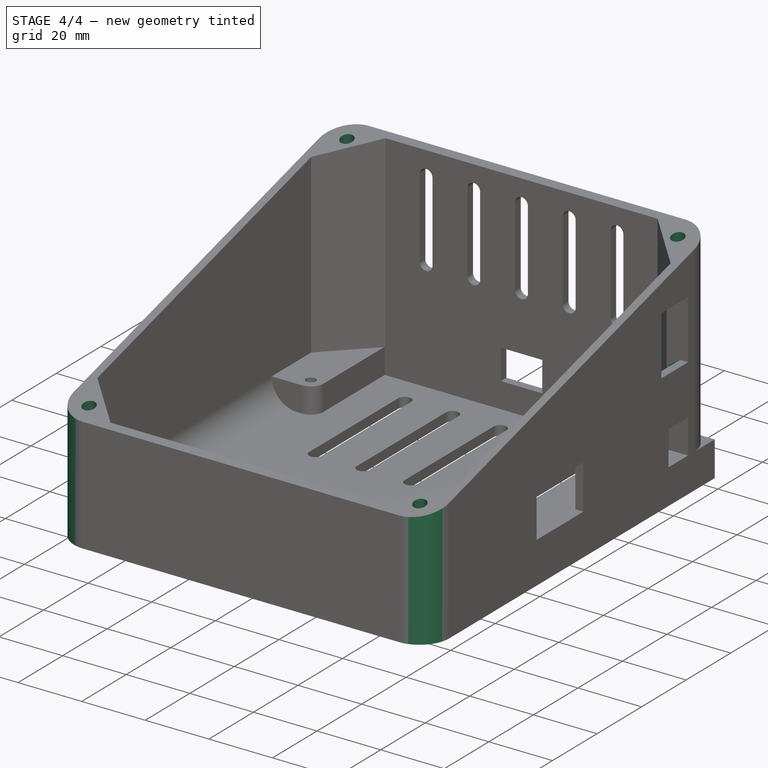
[diagram: stage 4 of 4 — iso view after this stage's code; geometry added in this stage tinted green]
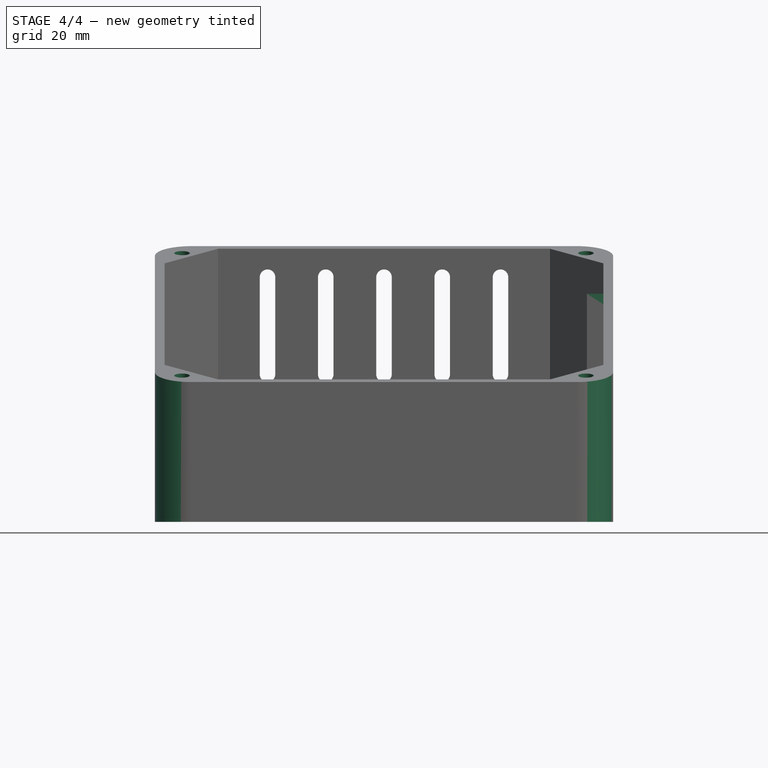
[diagram: stage 4 of 4 — front view after this stage's code; geometry added in this stage tinted green]
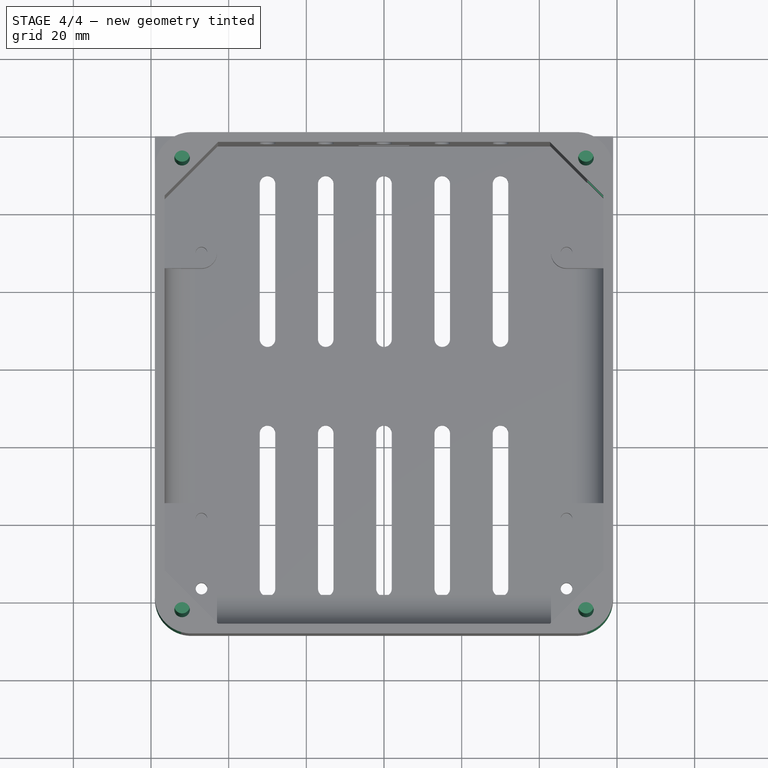
[diagram: stage 4 of 4 — top view after this stage's code; geometry added in this stage tinted green]
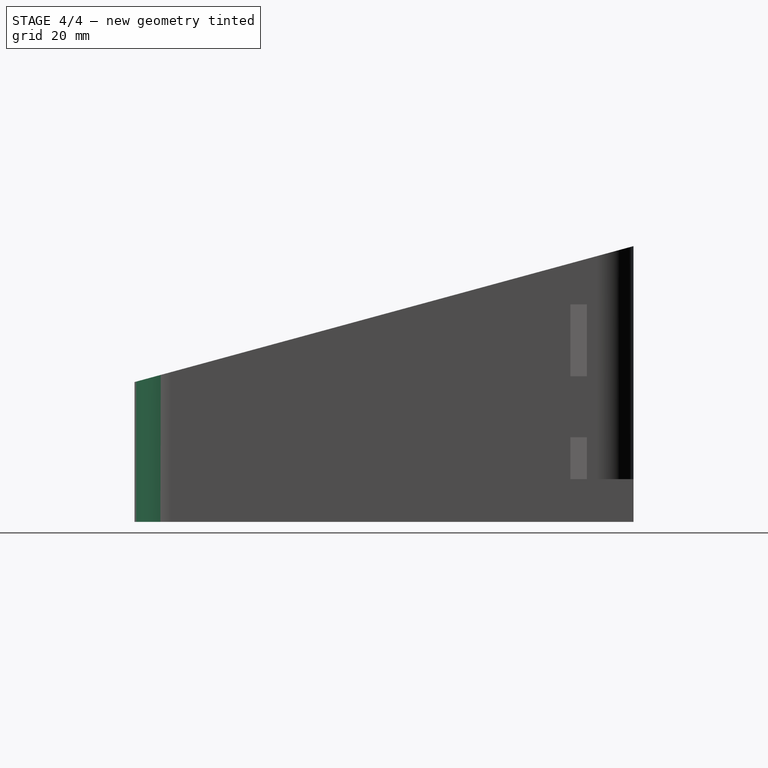
[diagram: stage 4 of 4 — right view after this stage's code; geometry added in this stage tinted green]
FEATURE [Sketcher::SketchObject] Sketch007
  FullyConstrained = true
  MapMode = 5
  Placement = pos=(-9.2e-15,-17.2422,63.3037) rot=(1,0,0;0.265923rad)
  Support = -> [Pocket003]
  sketch-geometry (4):
    g0: Circle CenterX=-52 CenterY=11 CenterZ=0 NormalX=0 NormalY=0 NormalZ=1 AngleXU=0 Radius=2
    g1: Circle CenterX=52 CenterY=11 CenterZ=0 NormalX=0 NormalY=0 NormalZ=1 AngleXU=0 Radius=2
    g2: Circle CenterX=52 CenterY=-109 CenterZ=0 NormalX=0 NormalY=0 NormalZ=1 AngleXU=0 Radius=2
    g3: Circle CenterX=-52 CenterY=-109 CenterZ=0 NormalX=0 NormalY=0 NormalZ=1 AngleXU=0 Radius=2
  constraints (11):
    c: Radius(g0) = 2
    c: Equal(g0,g1)
    c: Equal(g1,g2)
    c: Equal(g2,g3)
    c: Symmetric(g0,g1,g-2)
    c: DistanceX(g0,g-1) = 52
    c: DistanceY(g-1,g0) = 11
    c: Vertical(g0,g3)
    c: Vertical(g2,g1)
    c: DistanceY(g3,g0) = 120
    c: Horizontal(g3,g2)
FEATURE [PartDesign::Plane] DatumPlane004
  Length = 177.396
  MapMode = 5
  Placement = pos=(0,0,0) rot=(0.57735,0.57735,0.57735;2.0944rad)
  ResizeMode = 0
  Support = -> [YZ_Plane]
  Width = 116.896
FEATURE [Sketcher::SketchObject] Sketch008
  FullyConstrained = true
  MapMode = 5
  Placement = pos=(0,0,0) rot=(0.57735,0.57735,0.57735;2.0944rad)
  Support = -> [DatumPlane004]
  sketch-geometry (4):
    g0: LineSegment StartX=-24 StartY=55.75 StartZ=0 EndX=-12 EndY=55.75 EndZ=0
    g1: LineSegment StartX=-12 StartY=55.75 StartZ=0 EndX=-12 EndY=31.75 EndZ=0
    g2: LineSegment StartX=-12 StartY=31.75 StartZ=0 EndX=-24 EndY=31.75 EndZ=0
    g3: LineSegment StartX=-24 StartY=31.75 StartZ=0 EndX=-24 EndY=55.75 EndZ=0
  constraints (12):
    c: Coincident(g0,g1)
    c: Coincident(g1,g2)
    c: Coincident(g2,g3)
    c: Coincident(g3,g0)
    c: Horizontal(g0)
    c: Horizontal(g2)
    c: Vertical(g1)
    c: Vertical(g3)
    c: DistanceX(g1,g-1) = 12
    c: DistanceX(g2,g2) = 12
    c: DistanceY(g1,g1) = 24
    c: DistanceY(g-1,g1) = 31.75
FEATURE [PartDesign::Pocket] Pocket005
  BaseFeature = -> Pocket003
  Direction = (-1,1e-16,-1e-16)
  Length = 56.5
  Length2 = 5
  Profile = -> Sketch008
  ReferenceAxis = -> Sketch008 [N_Axis]
  Refine = true
  Reversed = true
  Type = 0
FEATURE [PartDesign::Pocket] Pocket006
  BaseFeature = -> Pocket005
  Direction = (1e-16,0.2628,-0.96485)
  Length = 4
  Length2 = 5
  Profile = -> Sketch007
  ReferenceAxis = -> Sketch007 [N_Axis]
  Refine = true
  Type = 0
FEATURE [PartDesign::Fillet] Fillet001
  Base = -> Pocket006 [Edge292,Edge278]
  BaseFeature = -> Pocket006
  Radius = 9.38
  SupportTransform = false
  UseAllEdges = false
FEATURE [PartDesign::Body] Body
  Group = -> [DatumPlane,Sketch,Pad,Sketch001,Pad001,DatumPlane001,Sketch002,Pad002,Fillet,DatumPlane002,Sketch003,Pocket,Sketch004,Pocket001,Sketch005,Pocket002,DatumPlane003,Sketch006,Pocket003,Sketch007,DatumPlane004,Sketch008,Pocket005,Pocket006,Fillet001]
  Origin = -> Origin
  Tip = -> Fillet001
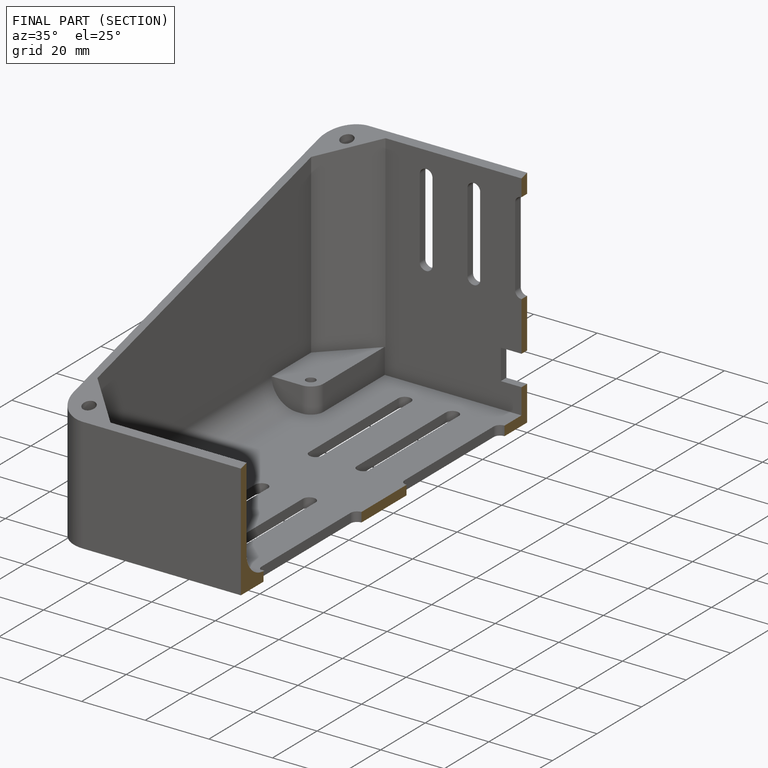
[diagram: finished part — half-section view (interior)]
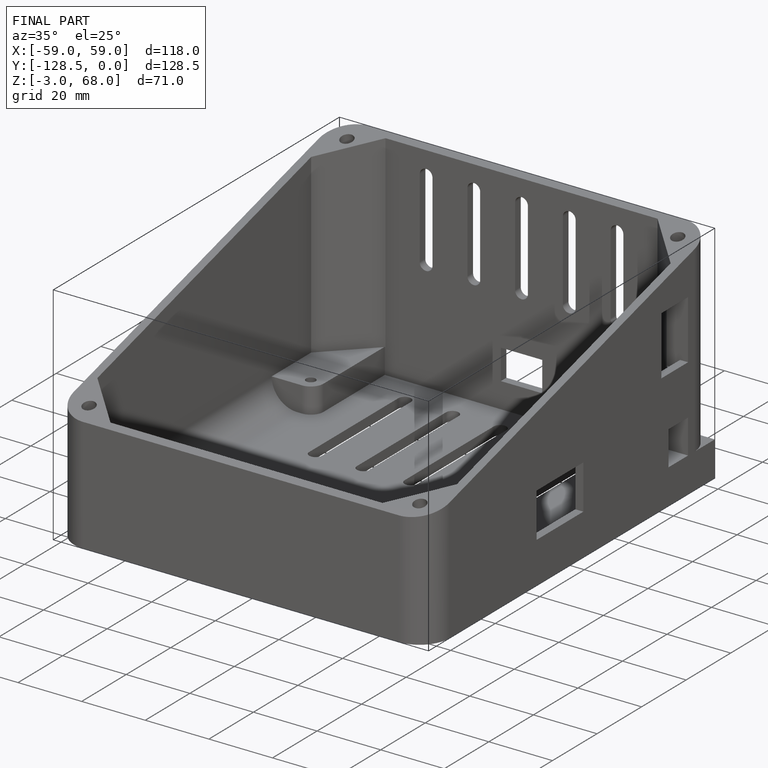
[diagram: finished part — iso view with bounding-box wireframe]
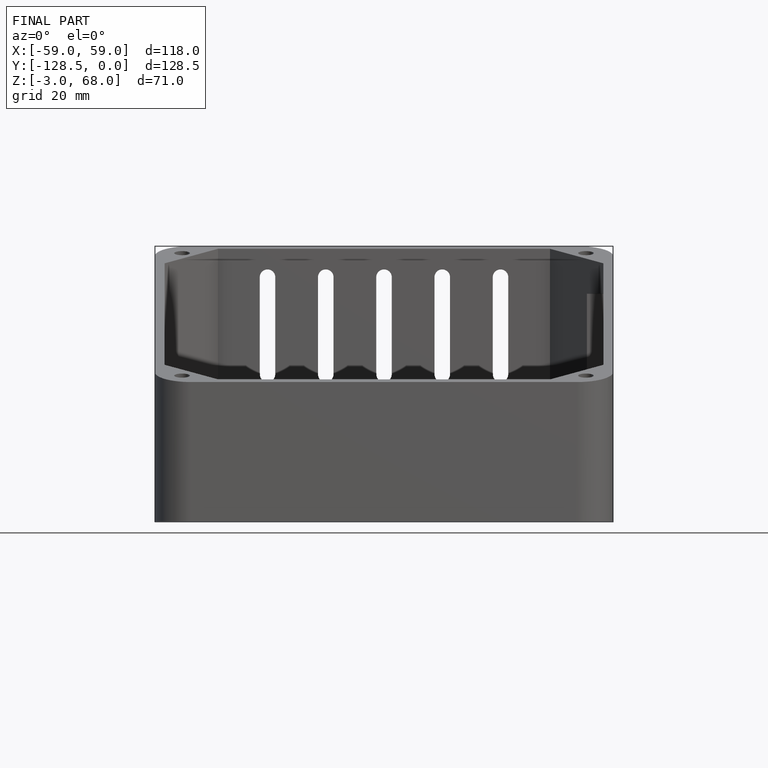
[diagram: finished part — front view with bounding-box wireframe]
